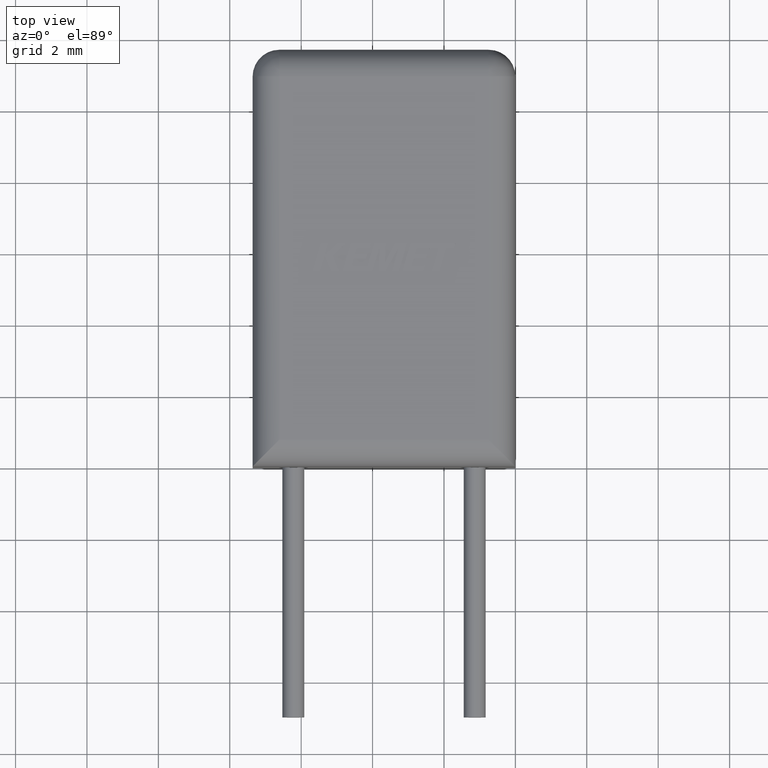
[diagram: clean part render]
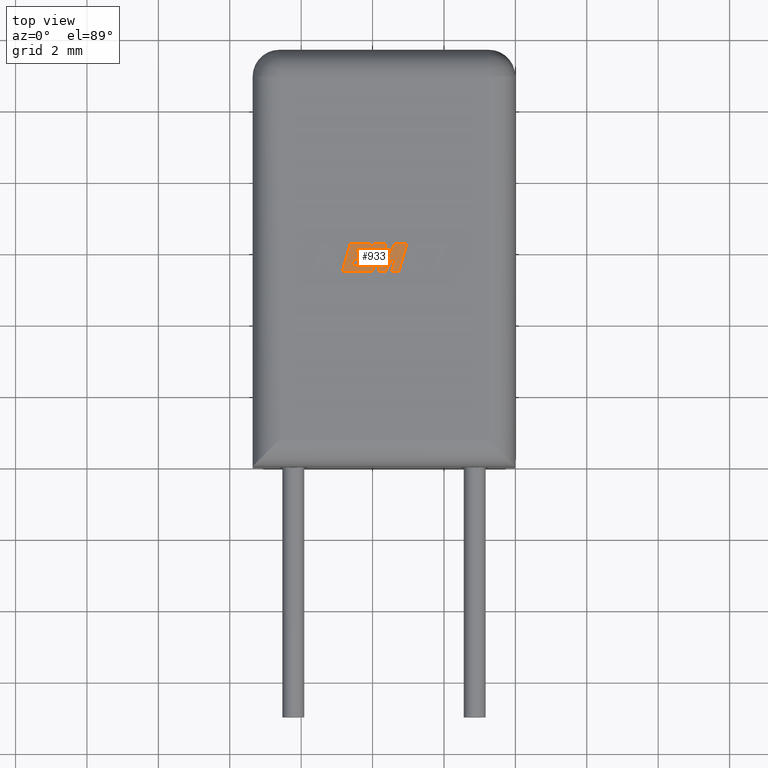
[diagram: same view with one face highlighted and labeled with its STEP entity id]
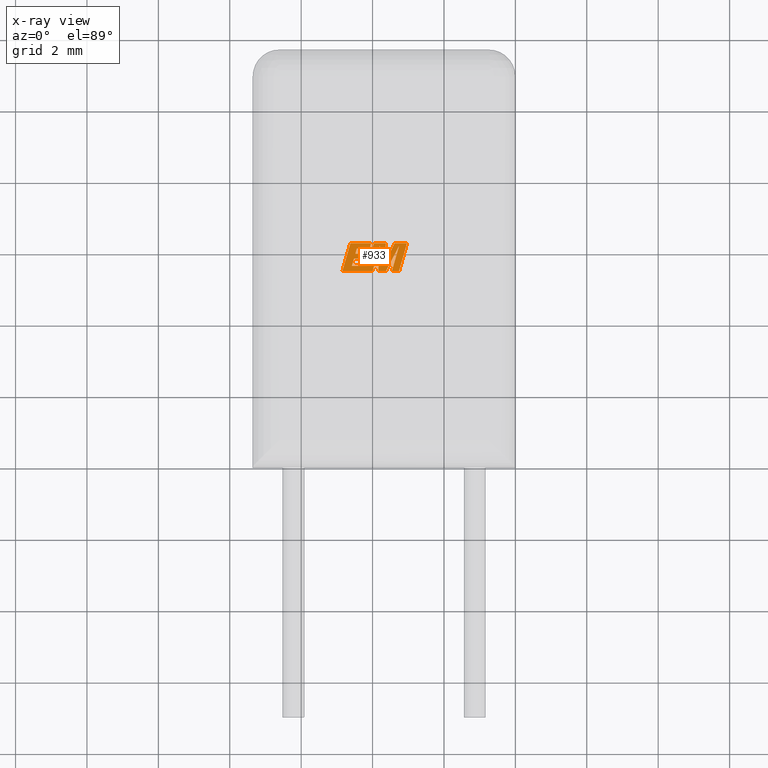
[diagram: x-ray of the same camera — body ghosted, the highlighted face saturated]
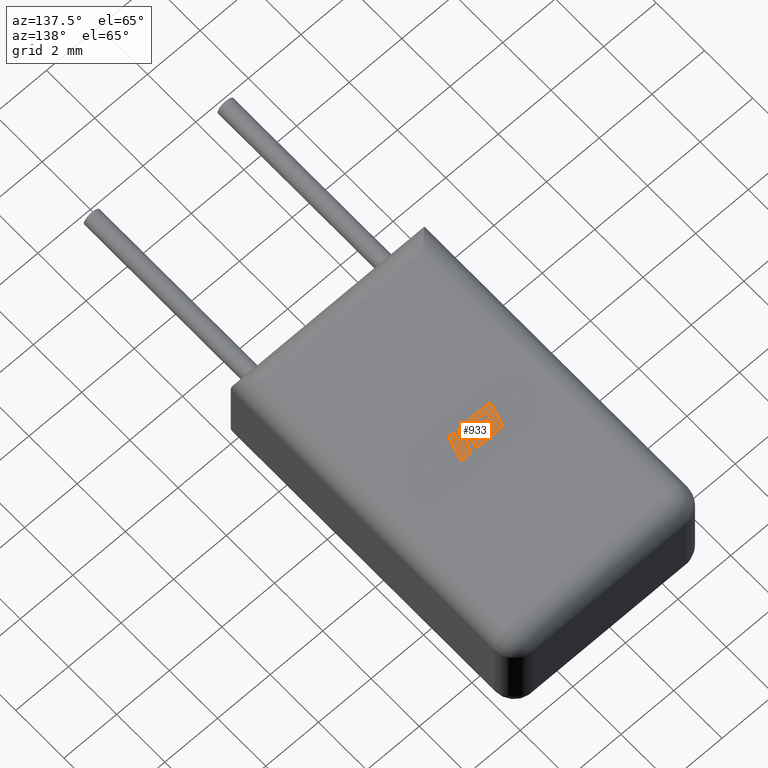
[diagram: same view with one face highlighted and labeled with its STEP entity id]
A machine part, top view. The second image highlights one B-rep face of the part: STEP entity #933.
The next image is the same camera in x-ray: the body ghosted, the highlighted face saturated — about 0% of this face is hidden behind the body in this view.
A second angle (auxiliary view) of the same face is appended — the face is thin or edge-on in the first view.
In plain terms, the highlighted planar face has unit normal (0, 0, -1).
Its self-contained STEP definition (entity closure, byte-faithful):
#24 = DIRECTION ( 'NONE',  ( -0.2760118818968558300, -0.9611542233438690200, 0.0000000000000000000 ) ) ;
#30 = LINE ( 'NONE', #865, #728 ) ;
#41 = CARTESIAN_POINT ( 'NONE',  ( -4.440366467501947400, 6.099625133244084700, 4.075000000000000200 ) ) ;
#51 = EDGE_CURVE ( 'NONE', #3263, #2916, #468, .T. ) ;
#61 = CARTESIAN_POINT ( 'NONE',  ( -4.482862312763144200, 5.953582669971546600, 4.075000000000000200 ) ) ;
#69 = CARTESIAN_POINT ( 'NONE',  ( -3.838785255517836800, 5.463903999999998500, 4.075000000000000200 ) ) ;
#77 = ORIENTED_EDGE ( 'NONE', *, *, #1942, .T. ) ;
#97 = DIRECTION ( 'NONE',  ( -0.2762517575166408800, -0.9610853065513835800, 0.0000000000000000000 ) ) ;
#120 = VECTOR ( 'NONE', #2780, 1000.000000000000000 ) ;
#143 = EDGE_CURVE ( 'NONE', #1972, #291, #1873, .T. ) ;
#163 = VECTOR ( 'NONE', #24, 1000.000000000000200 ) ;
#223 = CARTESIAN_POINT ( 'NONE',  ( -3.961868024684696500, 6.249079201172937000, 4.075000000000000200 ) ) ;
#269 = VERTEX_POINT ( 'NONE', #1681 ) ;
#274 = VECTOR ( 'NONE', #1239, 1000.000000000000000 ) ;
#291 = VERTEX_POINT ( 'NONE', #223 ) ;
#303 = VECTOR ( 'NONE', #2622, 1000.000000000000000 ) ;
#305 = DIRECTION ( 'NONE',  ( 0.2732148821746193700, 0.9619530280415508100, 0.0000000000000000000 ) ) ;
#306 = CARTESIAN_POINT ( 'NONE',  ( -3.258671606981883100, 6.166291087347180300, 4.075000000000000200 ) ) ;
#325 = LINE ( 'NONE', #3710, #2050 ) ;
#330 = CARTESIAN_POINT ( 'NONE',  ( -4.620245650710643300, 6.249079201172937000, 4.075000000000000200 ) ) ;
#372 = VECTOR ( 'NONE', #519, 1000.000000000000200 ) ;
#381 = ORIENTED_EDGE ( 'NONE', *, *, #861, .T. ) ;
#392 = CARTESIAN_POINT ( 'NONE',  ( -4.144619258564318900, 5.613284058312131300, 4.075000000000000200 ) ) ;
#394 = EDGE_CURVE ( 'NONE', #1173, #1353, #965, .T. ) ;
#423 = ORIENTED_EDGE ( 'NONE', *, *, #454, .T. ) ;
#454 = EDGE_CURVE ( 'NONE', #291, #3171, #555, .T. ) ;
#468 = LINE ( 'NONE', #948, #274 ) ;
#471 = LINE ( 'NONE', #2825, #372 ) ;
#492 = ORIENTED_EDGE ( 'NONE', *, *, #2000, .T. ) ;
#501 = VECTOR ( 'NONE', #305, 1000.000000000000200 ) ;
#507 = VECTOR ( 'NONE', #1207, 1000.000000000000000 ) ;
#519 = DIRECTION ( 'NONE',  ( -0.05596501978069389600, -0.9984327301130239100, 0.0000000000000000000 ) ) ;
#541 = DIRECTION ( 'NONE',  ( 1.000000000000000000, 0.0000000000000000000, 0.0000000000000000000 ) ) ;
#555 = LINE ( 'NONE', #2971, #3411 ) ;
#559 = VECTOR ( 'NONE', #3534, 1000.000000000000000 ) ;
#583 = VERTEX_POINT ( 'NONE', #1935 ) ;
#601 = CARTESIAN_POINT ( 'NONE',  ( -4.082632622250006400, 6.099625133244084700, 4.075000000000000200 ) ) ;
#633 = ORIENTED_EDGE ( 'NONE', *, *, #3675, .T. ) ;
#659 = VERTEX_POINT ( 'NONE', #3022 ) ;
#692 = CARTESIAN_POINT ( 'NONE',  ( -4.440366467501947400, 6.099625133244084700, 4.075000000000000200 ) ) ;
#695 = CARTESIAN_POINT ( 'NONE',  ( -3.657685278034355800, 5.688139949191390900, 4.075000000000000200 ) ) ;
#699 = CARTESIAN_POINT ( 'NONE',  ( -3.260848922199653700, 5.463903999999998500, 4.075000000000000200 ) ) ;
#709 = VERTEX_POINT ( 'NONE', #3129 ) ;
#714 = LINE ( 'NONE', #2026, #2340 ) ;
#716 = CARTESIAN_POINT ( 'NONE',  ( -3.460374077917588200, 5.463903999999998500, 4.075000000000000200 ) ) ;
#719 = DIRECTION ( 'NONE',  ( 0.2763139702539144600, 0.9610674221107065000, 0.0000000000000000000 ) ) ;
#726 = CARTESIAN_POINT ( 'NONE',  ( -4.524274275229539700, 5.808430709523683800, 4.075000000000000200 ) ) ;
#728 = VECTOR ( 'NONE', #3430, 1000.000000000000000 ) ;
#786 = LINE ( 'NONE', #726, #3713 ) ;
#791 = CARTESIAN_POINT ( 'NONE',  ( -3.657685278034355800, 5.688139949191390900, 4.075000000000000200 ) ) ;
#805 = LINE ( 'NONE', #3272, #2205 ) ;
#827 = LINE ( 'NONE', #1644, #120 ) ;
#861 = EDGE_CURVE ( 'NONE', #583, #1731, #1593, .T. ) ;
#865 = CARTESIAN_POINT ( 'NONE',  ( -3.460374077917588200, 5.463903999999998500, 4.075000000000000200 ) ) ;
#879 = CARTESIAN_POINT ( 'NONE',  ( -3.629464568726682200, 5.463903999999998500, 4.075000000000000200 ) ) ;
#885 = EDGE_CURVE ( 'NONE', #1731, #659, #30, .T. ) ;
#891 = DIRECTION ( 'NONE',  ( 0.0000000000000000000, 0.0000000000000000000, -1.000000000000000000 ) ) ;
#893 = ORIENTED_EDGE ( 'NONE', *, *, #1345, .T. ) ;
#933 = ADVANCED_FACE ( 'NONE', ( #1122 ), #3719, .F. ) ;
#948 = CARTESIAN_POINT ( 'NONE',  ( -4.040184525129472300, 6.249079201172937000, 4.075000000000000200 ) ) ;
#965 = LINE ( 'NONE', #61, #2128 ) ;
#990 = ORIENTED_EDGE ( 'NONE', *, *, #1562, .T. ) ;
#993 = VERTEX_POINT ( 'NONE', #2659 ) ;
#1021 = DIRECTION ( 'NONE',  ( 0.4668459304955085400, 0.8843386665637676900, 0.0000000000000000000 ) ) ;
#1042 = CARTESIAN_POINT ( 'NONE',  ( -4.187315646014348600, 5.808430709523683800, 4.075000000000000200 ) ) ;
#1085 = ORIENTED_EDGE ( 'NONE', *, *, #2506, .T. ) ;
#1089 = VECTOR ( 'NONE', #2264, 1000.000000000000000 ) ;
#1122 = FACE_OUTER_BOUND ( 'NONE', #1399, .T. ) ;
#1146 = EDGE_CURVE ( 'NONE', #2505, #583, #805, .T. ) ;
#1164 = VERTEX_POINT ( 'NONE', #1588 ) ;
#1173 = VERTEX_POINT ( 'NONE', #1874 ) ;
#1178 = LINE ( 'NONE', #2330, #303 ) ;
#1190 = VERTEX_POINT ( 'NONE', #3283 ) ;
#1202 = CARTESIAN_POINT ( 'NONE',  ( -4.846187465924408000, 5.463903999999998500, 4.075000000000000200 ) ) ;
#1207 = DIRECTION ( 'NONE',  ( 1.000000000000000000, 0.0000000000000000000, 0.0000000000000000000 ) ) ;
#1239 = DIRECTION ( 'NONE',  ( -1.000000000000000000, 0.0000000000000000000, 0.0000000000000000000 ) ) ;
#1326 = ORIENTED_EDGE ( 'NONE', *, *, #1536, .T. ) ;
#1345 = EDGE_CURVE ( 'NONE', #1190, #2505, #1909, .T. ) ;
#1353 = VERTEX_POINT ( 'NONE', #692 ) ;
#1368 = LINE ( 'NONE', #2837, #3585 ) ;
#1389 = CARTESIAN_POINT ( 'NONE',  ( -4.620245650710643300, 6.249079201172937000, 4.075000000000000200 ) ) ;
#1399 = EDGE_LOOP ( 'NONE', ( #1700, #1085, #990, #3427, #423, #1924, #77, #2105, #633, #2698, #2513, #492, #2520, #1672, #1802, #1725, #3538, #1326, #893, #3528, #381, #3394, #2443 ) ) ;
#1411 = VECTOR ( 'NONE', #719, 1000.000000000000100 ) ;
#1479 = DIRECTION ( 'NONE',  ( 0.2793947940878359100, 0.9601763114327575000, 0.0000000000000000000 ) ) ;
#1514 = CARTESIAN_POINT ( 'NONE',  ( -4.579876985124740500, 5.613284058312131300, 4.075000000000000200 ) ) ;
#1518 = CARTESIAN_POINT ( 'NONE',  ( -4.144619258564318900, 5.613284058312131300, 4.075000000000000200 ) ) ;
#1536 = EDGE_CURVE ( 'NONE', #1164, #1190, #471, .T. ) ;
#1562 = EDGE_CURVE ( 'NONE', #1737, #1972, #2120, .T. ) ;
#1588 = CARTESIAN_POINT ( 'NONE',  ( -3.799603131224843700, 6.162924843426480900, 4.075000000000000200 ) ) ;
#1593 = LINE ( 'NONE', #306, #163 ) ;
#1630 = EDGE_CURVE ( 'NONE', #2916, #2574, #1779, .T. ) ;
#1643 = VERTEX_POINT ( 'NONE', #2660 ) ;
#1644 = CARTESIAN_POINT ( 'NONE',  ( -4.145855935407241500, 5.953582669971546600, 4.075000000000000200 ) ) ;
#1672 = ORIENTED_EDGE ( 'NONE', *, *, #51, .T. ) ;
#1677 = DIRECTION ( 'NONE',  ( -1.000000000000000000, 0.0000000000000000000, 0.0000000000000000000 ) ) ;
#1681 = CARTESIAN_POINT ( 'NONE',  ( -3.379477765441183400, 6.249079201172937000, 4.075000000000000200 ) ) ;
#1700 = ORIENTED_EDGE ( 'NONE', *, *, #2338, .T. ) ;
#1716 = EDGE_CURVE ( 'NONE', #2884, #1643, #786, .T. ) ;
#1725 = ORIENTED_EDGE ( 'NONE', *, *, #3420, .T. ) ;
#1731 = VERTEX_POINT ( 'NONE', #716 ) ;
#1737 = VERTEX_POINT ( 'NONE', #695 ) ;
#1773 = AXIS2_PLACEMENT_3D ( 'NONE', #2030, #891, #2331 ) ;
#1779 = LINE ( 'NONE', #330, #2188 ) ;
#1788 = VERTEX_POINT ( 'NONE', #2107 ) ;
#1796 = DIRECTION ( 'NONE',  ( -0.2765379750249946600, -0.9610029908221282600, 0.0000000000000000000 ) ) ;
#1802 = ORIENTED_EDGE ( 'NONE', *, *, #1630, .T. ) ;
#1868 = DIRECTION ( 'NONE',  ( 0.2746459304916987800, 0.9615454294334454500, 0.0000000000000000000 ) ) ;
#1873 = LINE ( 'NONE', #2962, #559 ) ;
#1874 = CARTESIAN_POINT ( 'NONE',  ( -4.482862312763144200, 5.953582669971546600, 4.075000000000000200 ) ) ;
#1909 = LINE ( 'NONE', #69, #2134 ) ;
#1924 = ORIENTED_EDGE ( 'NONE', *, *, #3552, .T. ) ;
#1935 = CARTESIAN_POINT ( 'NONE',  ( -3.258671606981883100, 6.166291087347180300, 4.075000000000000200 ) ) ;
#1942 = EDGE_CURVE ( 'NONE', #993, #2884, #2500, .T. ) ;
#1972 = VERTEX_POINT ( 'NONE', #2641 ) ;
#2000 = EDGE_CURVE ( 'NONE', #1353, #1788, #2539, .T. ) ;
#2026 = CARTESIAN_POINT ( 'NONE',  ( -4.000312440833393000, 5.463903999999998500, 4.075000000000000200 ) ) ;
#2030 = CARTESIAN_POINT ( 'NONE',  ( 0.002325967628486955200, 1.147717892871390000, 4.074999999999998400 ) ) ;
#2050 = VECTOR ( 'NONE', #541, 1000.000000000000000 ) ;
#2105 = ORIENTED_EDGE ( 'NONE', *, *, #1716, .T. ) ;
#2107 = CARTESIAN_POINT ( 'NONE',  ( -4.082632622250006400, 6.099625133244084700, 4.075000000000000200 ) ) ;
#2120 = LINE ( 'NONE', #791, #1089 ) ;
#2128 = VECTOR ( 'NONE', #1479, 1000.000000000000000 ) ;
#2134 = VECTOR ( 'NONE', #2669, 1000.000000000000000 ) ;
#2164 = EDGE_CURVE ( 'NONE', #659, #3071, #2804, .T. ) ;
#2188 = VECTOR ( 'NONE', #1796, 999.9999999999998900 ) ;
#2205 = VECTOR ( 'NONE', #1021, 1000.000000000000200 ) ;
#2213 = EDGE_CURVE ( 'NONE', #3438, #1173, #827, .T. ) ;
#2264 = DIRECTION ( 'NONE',  ( 0.05375259206908529500, 0.9985542843760946100, 0.0000000000000000000 ) ) ;
#2324 = CARTESIAN_POINT ( 'NONE',  ( -4.145855935407241500, 5.953582669971546600, 4.075000000000000200 ) ) ;
#2330 = CARTESIAN_POINT ( 'NONE',  ( -3.379477765441183400, 6.249079201172937000, 4.075000000000000200 ) ) ;
#2331 = DIRECTION ( 'NONE',  ( -1.000000000000000000, 0.0000000000000000000, 0.0000000000000000000 ) ) ;
#2338 = EDGE_CURVE ( 'NONE', #3071, #269, #1368, .T. ) ;
#2340 = VECTOR ( 'NONE', #3495, 1000.000000000000200 ) ;
#2341 = CARTESIAN_POINT ( 'NONE',  ( -3.035105262400498400, 6.249079201172937000, 4.075000000000000200 ) ) ;
#2352 = LINE ( 'NONE', #1042, #3397 ) ;
#2362 = DIRECTION ( 'NONE',  ( 0.2740217765954073300, 0.9617234872620594700, 0.0000000000000000000 ) ) ;
#2423 = DIRECTION ( 'NONE',  ( 1.000000000000000000, 0.0000000000000000000, 0.0000000000000000000 ) ) ;
#2443 = ORIENTED_EDGE ( 'NONE', *, *, #2164, .T. ) ;
#2489 = EDGE_CURVE ( 'NONE', #1788, #3263, #3535, .T. ) ;
#2500 = LINE ( 'NONE', #1514, #2772 ) ;
#2505 = VERTEX_POINT ( 'NONE', #879 ) ;
#2506 = EDGE_CURVE ( 'NONE', #269, #1737, #1178, .T. ) ;
#2513 = ORIENTED_EDGE ( 'NONE', *, *, #394, .T. ) ;
#2520 = ORIENTED_EDGE ( 'NONE', *, *, #2489, .T. ) ;
#2539 = LINE ( 'NONE', #41, #507 ) ;
#2574 = VERTEX_POINT ( 'NONE', #1202 ) ;
#2622 = DIRECTION ( 'NONE',  ( -0.4443210308329548200, -0.8958676361826786200, 0.0000000000000000000 ) ) ;
#2641 = CARTESIAN_POINT ( 'NONE',  ( -3.627489685006438400, 6.249079201172937000, 4.075000000000000200 ) ) ;
#2659 = CARTESIAN_POINT ( 'NONE',  ( -4.579876985124740500, 5.613284058312131300, 4.075000000000000200 ) ) ;
#2660 = CARTESIAN_POINT ( 'NONE',  ( -4.187315646014348600, 5.808430709523683800, 4.075000000000000200 ) ) ;
#2669 = DIRECTION ( 'NONE',  ( 1.000000000000000000, 0.0000000000000000000, 0.0000000000000000000 ) ) ;
#2698 = ORIENTED_EDGE ( 'NONE', *, *, #2213, .T. ) ;
#2772 = VECTOR ( 'NONE', #2362, 1000.000000000000100 ) ;
#2780 = DIRECTION ( 'NONE',  ( -1.000000000000000000, 0.0000000000000000000, 0.0000000000000000000 ) ) ;
#2804 = LINE ( 'NONE', #699, #1411 ) ;
#2825 = CARTESIAN_POINT ( 'NONE',  ( -3.799603131224843700, 6.162924843426480900, 4.075000000000000200 ) ) ;
#2837 = CARTESIAN_POINT ( 'NONE',  ( -3.035105262400498400, 6.249079201172937000, 4.075000000000000200 ) ) ;
#2884 = VERTEX_POINT ( 'NONE', #3671 ) ;
#2916 = VERTEX_POINT ( 'NONE', #1389 ) ;
#2962 = CARTESIAN_POINT ( 'NONE',  ( -3.627489685006438400, 6.249079201172937000, 4.075000000000000200 ) ) ;
#2971 = CARTESIAN_POINT ( 'NONE',  ( -3.961868024684696500, 6.249079201172937000, 4.075000000000000200 ) ) ;
#2997 = DIRECTION ( 'NONE',  ( -1.000000000000000000, 0.0000000000000000000, 0.0000000000000000000 ) ) ;
#3022 = CARTESIAN_POINT ( 'NONE',  ( -3.260848922199653700, 5.463903999999998500, 4.075000000000000200 ) ) ;
#3067 = EDGE_CURVE ( 'NONE', #709, #1164, #714, .T. ) ;
#3071 = VERTEX_POINT ( 'NONE', #2341 ) ;
#3129 = CARTESIAN_POINT ( 'NONE',  ( -4.000312440833393000, 5.463903999999998500, 4.075000000000000200 ) ) ;
#3171 = VERTEX_POINT ( 'NONE', #1518 ) ;
#3200 = LINE ( 'NONE', #392, #3504 ) ;
#3263 = VERTEX_POINT ( 'NONE', #3551 ) ;
#3272 = CARTESIAN_POINT ( 'NONE',  ( -3.629464568726682200, 5.463903999999998500, 4.075000000000000200 ) ) ;
#3283 = CARTESIAN_POINT ( 'NONE',  ( -3.838785255517836800, 5.463903999999998500, 4.075000000000000200 ) ) ;
#3394 = ORIENTED_EDGE ( 'NONE', *, *, #885, .T. ) ;
#3397 = VECTOR ( 'NONE', #1868, 1000.000000000000000 ) ;
#3411 = VECTOR ( 'NONE', #97, 1000.000000000000100 ) ;
#3420 = EDGE_CURVE ( 'NONE', #2574, #709, #325, .T. ) ;
#3427 = ORIENTED_EDGE ( 'NONE', *, *, #143, .T. ) ;
#3430 = DIRECTION ( 'NONE',  ( 1.000000000000000000, 0.0000000000000000000, 0.0000000000000000000 ) ) ;
#3438 = VERTEX_POINT ( 'NONE', #2324 ) ;
#3495 = DIRECTION ( 'NONE',  ( 0.2759782365590715500, 0.9611638845408960700, 0.0000000000000000000 ) ) ;
#3504 = VECTOR ( 'NONE', #2997, 1000.000000000000000 ) ;
#3528 = ORIENTED_EDGE ( 'NONE', *, *, #1146, .T. ) ;
#3534 = DIRECTION ( 'NONE',  ( -1.000000000000000000, 0.0000000000000000000, 0.0000000000000000000 ) ) ;
#3535 = LINE ( 'NONE', #601, #501 ) ;
#3538 = ORIENTED_EDGE ( 'NONE', *, *, #3067, .T. ) ;
#3551 = CARTESIAN_POINT ( 'NONE',  ( -4.040184525129472300, 6.249079201172937000, 4.075000000000000200 ) ) ;
#3552 = EDGE_CURVE ( 'NONE', #3171, #993, #3200, .T. ) ;
#3585 = VECTOR ( 'NONE', #1677, 1000.000000000000000 ) ;
#3671 = CARTESIAN_POINT ( 'NONE',  ( -4.524274275229539700, 5.808430709523683800, 4.075000000000000200 ) ) ;
#3675 = EDGE_CURVE ( 'NONE', #1643, #3438, #2352, .T. ) ;
#3710 = CARTESIAN_POINT ( 'NONE',  ( -4.846187465924408000, 5.463903999999998500, 4.075000000000000200 ) ) ;
#3713 = VECTOR ( 'NONE', #2423, 1000.000000000000000 ) ;
#3719 = PLANE ( 'NONE',  #1773 ) ;